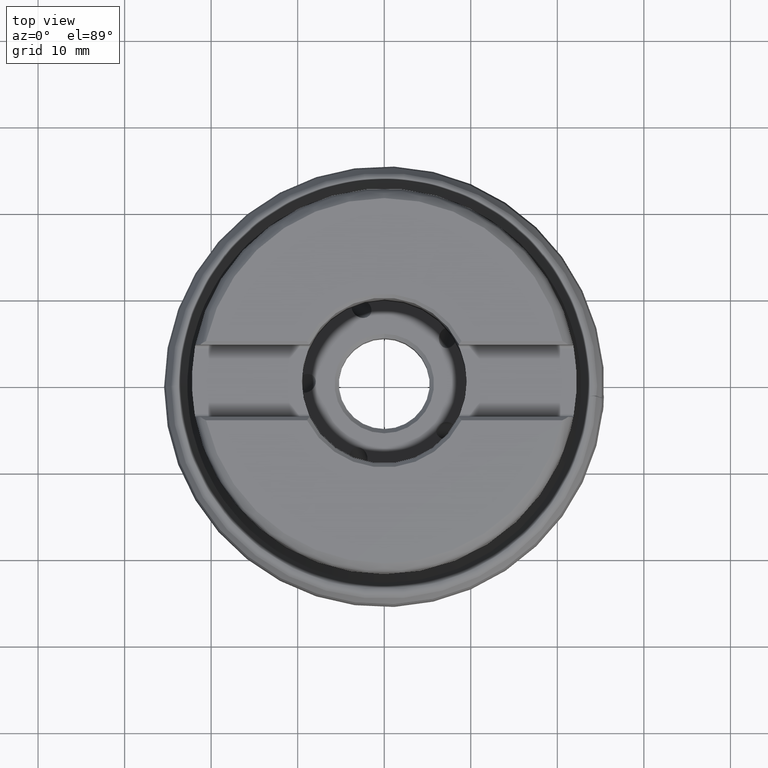
[diagram: clean part render]
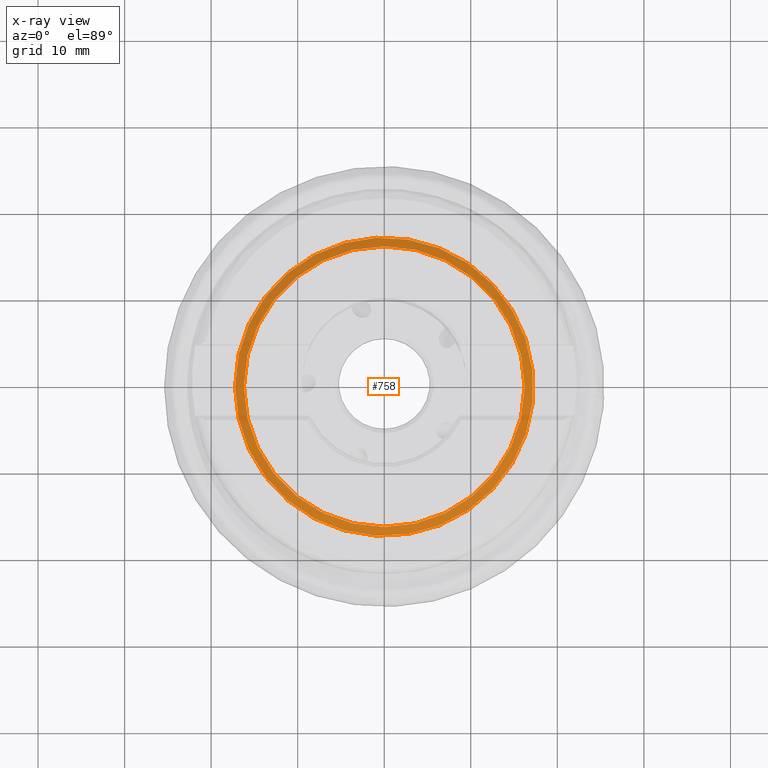
[diagram: x-ray — body ghosted, one internal face saturated and labeled with its STEP entity id]
A machine part, top view, then the same camera in x-ray: the body is ghosted and one INTERNAL B-rep face — a face not visible from any outside direction — is saturated and labeled: STEP entity #758.
In plain terms, the highlighted face is a SurfaceOfRevolution surface.
Its self-contained STEP definition (entity closure, byte-faithful):
#129=SURFACE_OF_REVOLUTION('',#2782,#152);
#152=AXIS1_PLACEMENT('',#7608,#3666);
#369=FACE_BOUND('',#1121,.T.);
#370=FACE_BOUND('',#1122,.T.);
#758=ADVANCED_FACE('',(#369,#370),#129,.F.);
#1121=EDGE_LOOP('',(#1968));
#1122=EDGE_LOOP('',(#1969));
#1236=CIRCLE('',#3048,17.2354981817077);
#1237=CIRCLE('',#3049,16.2151669188894);
#1968=ORIENTED_EDGE('',*,*,#2590,.T.);
#1969=ORIENTED_EDGE('',*,*,#2591,.F.);
#2223=VERTEX_POINT('',#7592);
#2224=VERTEX_POINT('',#7601);
#2590=EDGE_CURVE('',#2223,#2223,#1236,.T.);
#2591=EDGE_CURVE('',#2224,#2224,#1237,.T.);
#2782=B_SPLINE_CURVE_WITH_KNOTS('',5,(#7602,#7603,#7604,#7605,#7606,#7607),
 .UNSPECIFIED.,.F.,.F.,(6,6),(0.,1.),.UNSPECIFIED.);
#3048=AXIS2_PLACEMENT_3D('',#7591,#3661,#3662);
#3049=AXIS2_PLACEMENT_3D('',#7600,#3664,#3665);
#3661=DIRECTION('',(0.,0.,-1.));
#3662=DIRECTION('',(-1.,0.,0.));
#3664=DIRECTION('',(0.,0.,-1.));
#3665=DIRECTION('',(-1.,0.,0.));
#3666=DIRECTION('',(0.,0.,-1.));
#7591=CARTESIAN_POINT('',(0.,0.,3.35821942675934));
#7592=CARTESIAN_POINT('',(-17.2354981817077,0.,3.35821942675934));
#7600=CARTESIAN_POINT('',(0.,0.,4.01006970413067));
#7601=CARTESIAN_POINT('',(-16.2151669188894,0.,4.01006970413067));
#7602=CARTESIAN_POINT('',(16.2151677234179,0.,4.01006700291692));
#7603=CARTESIAN_POINT('',(16.4201057354365,3.89829709966376E-31,3.88107207471198));
#7604=CARTESIAN_POINT('',(16.6245727558797,7.13157172004042E-31,3.75132890450977));
#7605=CARTESIAN_POINT('',(16.8285994771726,3.46944695195362E-15,3.62089129833917));
#7606=CARTESIAN_POINT('',(17.0322249084352,3.46944695195362E-15,3.48982734612278));
#7607=CARTESIAN_POINT('',(17.2354981817077,3.46944695195361E-15,3.35821942675934));
#7608=CARTESIAN_POINT('',(0.,0.,0.));